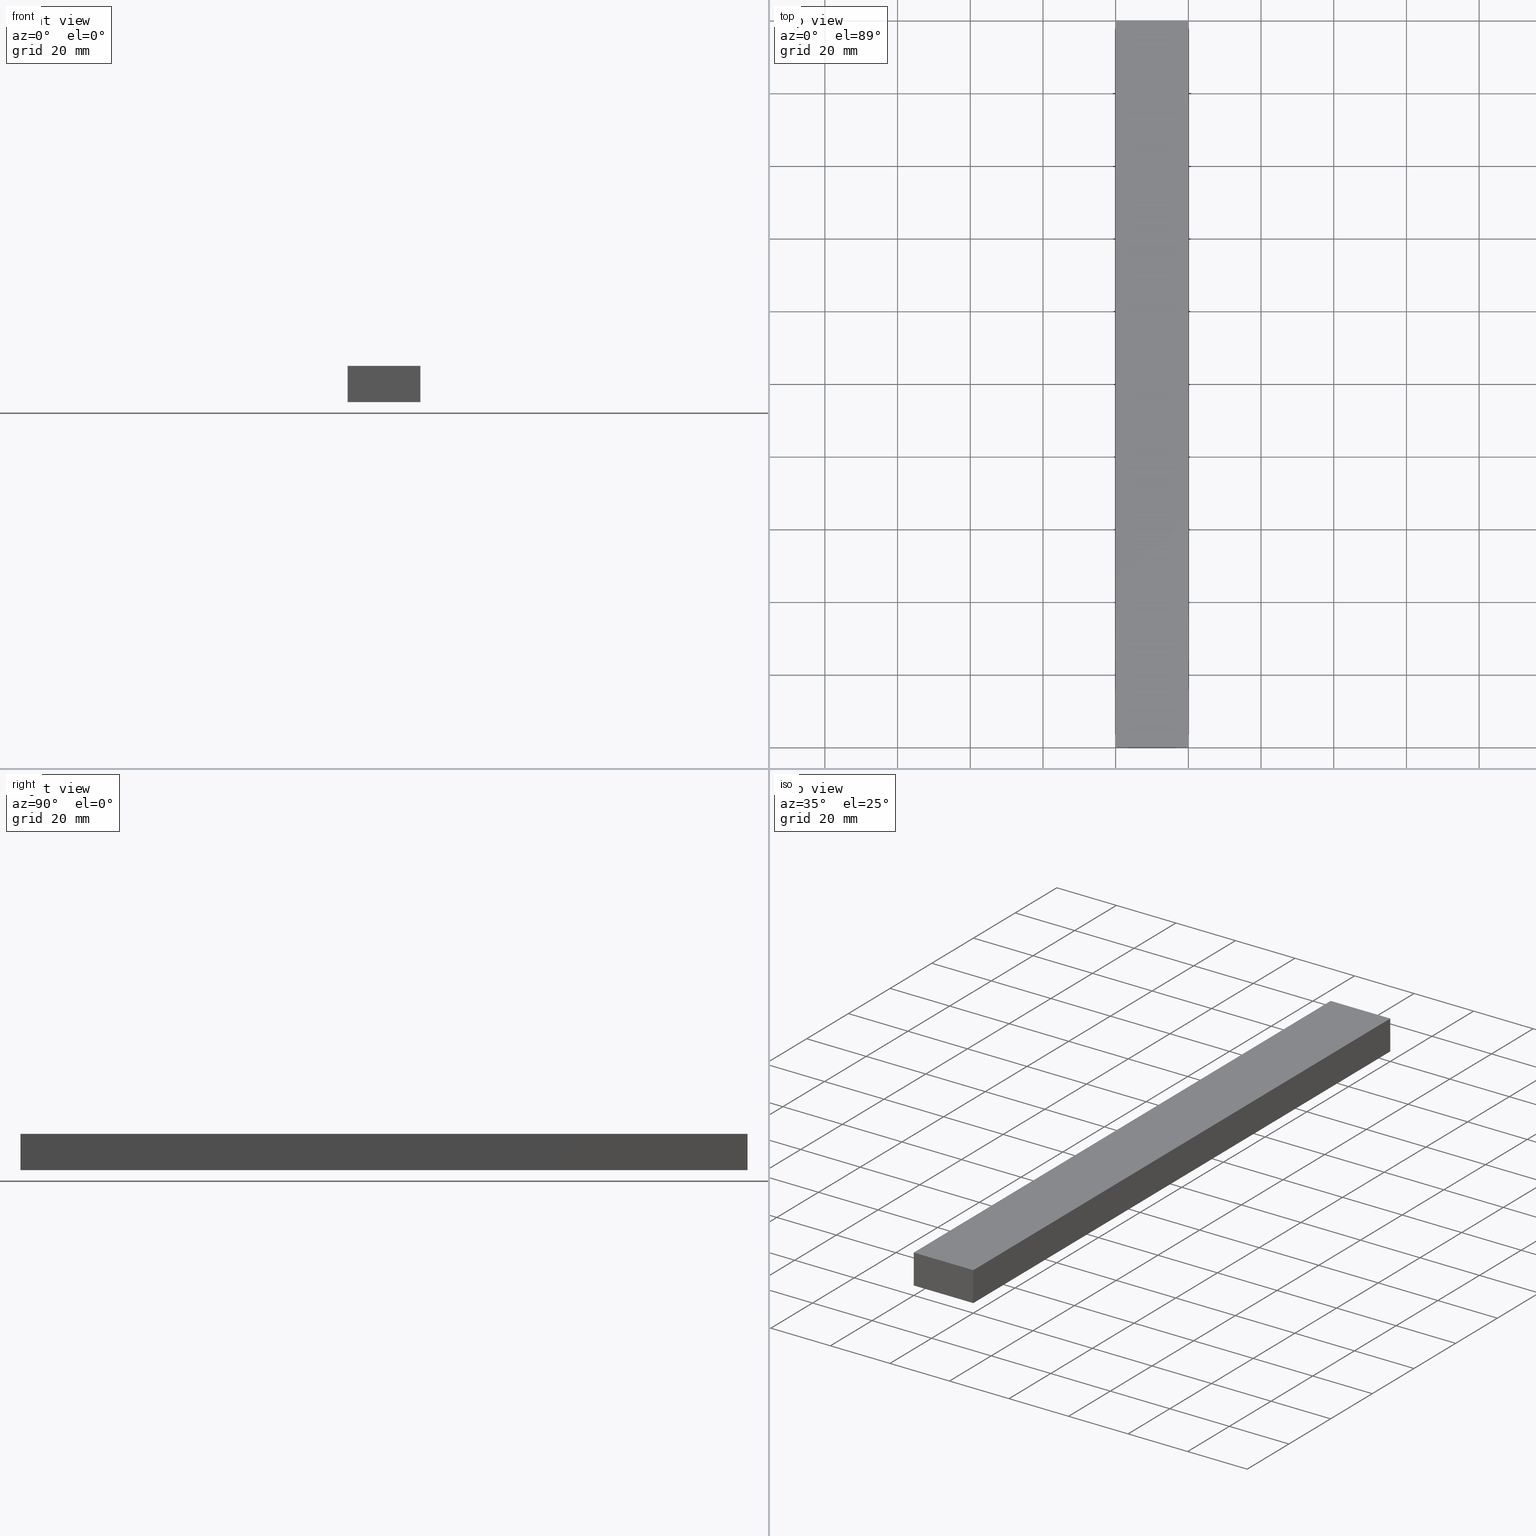
[diagram: canonical four-view strip — front | top / right | iso, engineering-drawing reading convention]
A machine part, canonical four-view strip (front | top / right | iso — engineering-drawing reading convention). The complete STEP part file that produces these views, byte-faithful:
ISO-10303-21;
HEADER;
FILE_DESCRIPTION (( 'STEP AP214' ),
    '1' );
FILE_NAME ('TM_339_10_20.STEP',
    '2016-05-09T04:37:05',
    ( '' ),
    ( '' ),
    'SwSTEP 2.0',
    'SolidWorks 2015',
    '' );
FILE_SCHEMA (( 'AUTOMOTIVE_DESIGN' ));
ENDSEC;

DATA;
#1 = DIRECTION ( 'NONE',  ( 0.0000000000000000000, 0.0000000000000000000, -1.000000000000000000 ) ) ;
#2 = AXIS2_PLACEMENT_3D ( 'NONE', #114, #1, #67 ) ;
#3 = PRODUCT_DEFINITION_CONTEXT ( 'detailed design', #54, 'design' ) ;
#4 = ORIENTED_EDGE ( 'NONE', *, *, #113, .F. ) ;
#5 =( NAMED_UNIT ( * ) PLANE_ANGLE_UNIT ( ) SI_UNIT ( $, .RADIAN. ) );
#6 = LINE ( 'NONE', #89, #43 ) ;
#7 = APPLICATION_PROTOCOL_DEFINITION ( 'draft international standard', 'automotive_design', 1998, #231 ) ;
#8 = AXIS2_PLACEMENT_3D ( 'NONE', #100, #198, #225 ) ;
#9 = SURFACE_SIDE_STYLE ('',( #228 ) ) ;
#10 = CLOSED_SHELL ( 'NONE', ( #172, #135, #128, #190, #151, #28 ) ) ;
#11 = VECTOR ( 'NONE', #39, 1000.000000000000000 ) ;
#12 = ORIENTED_EDGE ( 'NONE', *, *, #171, .T. ) ;
#13 = CARTESIAN_POINT ( 'NONE',  ( 0.0000000000000000000, 0.0000000000000000000, 10.00000000000000000 ) ) ;
#14 = APPLICATION_PROTOCOL_DEFINITION ( 'draft international standard', 'automotive_design', 1998, #110 ) ;
#15 = SHAPE_DEFINITION_REPRESENTATION ( #139, #130 ) ;
#16 = VECTOR ( 'NONE', #234, 1000.000000000000000 ) ;
#17 = FILL_AREA_STYLE_COLOUR ( '', #82 ) ;
#18 =( GEOMETRIC_REPRESENTATION_CONTEXT ( 3 ) GLOBAL_UNCERTAINTY_ASSIGNED_CONTEXT ( ( #84 ) ) GLOBAL_UNIT_ASSIGNED_CONTEXT ( ( #102, #205, #210 ) ) REPRESENTATION_CONTEXT ( 'NONE', 'WORKASPACE' ) );
#19 = ORIENTED_EDGE ( 'NONE', *, *, #87, .F. ) ;
#20 = PLANE ( 'NONE',  #191 ) ;
#21 = PLANE ( 'NONE',  #57 ) ;
#22 = PRODUCT_CONTEXT ( 'NONE', #229, 'mechanical' ) ;
#23 = FILL_AREA_STYLE_COLOUR ( '', #235 ) ;
#24 = CARTESIAN_POINT ( 'NONE',  ( 0.0000000000000000000, 1000.000000000000000, 10.00000000000000000 ) ) ;
#25 = CARTESIAN_POINT ( 'NONE',  ( 20.00000000000000000, 0.0000000000000000000, 0.0000000000000000000 ) ) ;
#26 = PLANE ( 'NONE',  #83 ) ;
#27 = ORIENTED_EDGE ( 'NONE', *, *, #78, .T. ) ;
#28 = ADVANCED_FACE ( 'NONE', ( #116 ), #26, .F. ) ;
#29 = AXIS2_PLACEMENT_3D ( 'NONE', #150, #109, #74 ) ;
#30 =( LENGTH_UNIT ( ) NAMED_UNIT ( * ) SI_UNIT ( .MILLI., .METRE. ) );
#31 = VECTOR ( 'NONE', #131, 1000.000000000000000 ) ;
#32 = CARTESIAN_POINT ( 'NONE',  ( 0.0000000000000000000, 200.0000000000000000, 0.0000000000000000000 ) ) ;
#33 = VECTOR ( 'NONE', #41, 1000.000000000000000 ) ;
#34 = DIRECTION ( 'NONE',  ( -0.0000000000000000000, -0.0000000000000000000, -1.000000000000000000 ) ) ;
#35 = EDGE_LOOP ( 'NONE', ( #86, #206, #221, #53 ) ) ;
#36 = PLANE ( 'NONE',  #60 ) ;
#37 = ORIENTED_EDGE ( 'NONE', *, *, #184, .T. ) ;
#38 = SURFACE_STYLE_FILL_AREA ( #152 ) ;
#39 = DIRECTION ( 'NONE',  ( 1.000000000000000000, -0.0000000000000000000, -0.0000000000000000000 ) ) ;
#40 = CARTESIAN_POINT ( 'NONE',  ( 0.0000000000000000000, 0.0000000000000000000, 0.0000000000000000000 ) ) ;
#41 = DIRECTION ( 'NONE',  ( 0.0000000000000000000, -1.000000000000000000, 0.0000000000000000000 ) ) ;
#42 = FACE_OUTER_BOUND ( 'NONE', #160, .T. ) ;
#43 = VECTOR ( 'NONE', #212, 1000.000000000000000 ) ;
#44 = PRODUCT_DEFINITION ( 'UNKNOWN', '', #106, #69 ) ;
#45 = DIRECTION ( 'NONE',  ( 0.0000000000000000000, 0.0000000000000000000, -1.000000000000000000 ) ) ;
#46 = VERTEX_POINT ( 'NONE', #141 ) ;
#47 = ORIENTED_EDGE ( 'NONE', *, *, #163, .T. ) ;
#48 = DIRECTION ( 'NONE',  ( -0.0000000000000000000, -0.0000000000000000000, 1.000000000000000000 ) ) ;
#49 = VECTOR ( 'NONE', #92, 1000.000000000000000 ) ;
#50 = DIRECTION ( 'NONE',  ( 0.0000000000000000000, 0.0000000000000000000, 1.000000000000000000 ) ) ;
#51 = FILL_AREA_STYLE ('',( #23 ) ) ;
#52 = ORIENTED_EDGE ( 'NONE', *, *, #121, .F. ) ;
#53 = ORIENTED_EDGE ( 'NONE', *, *, #155, .T. ) ;
#54 = APPLICATION_CONTEXT ( 'automotive_design' ) ;
#55 = CARTESIAN_POINT ( 'NONE',  ( 0.0000000000000000000, 1000.000000000000000, 10.00000000000000000 ) ) ;
#56 = PRODUCT_CONTEXT ( 'NONE', #110, 'mechanical' ) ;
#57 = AXIS2_PLACEMENT_3D ( 'NONE', #55, #134, #181 ) ;
#58 = VECTOR ( 'NONE', #97, 1000.000000000000000 ) ;
#59 = VERTEX_POINT ( 'NONE', #32 ) ;
#60 = AXIS2_PLACEMENT_3D ( 'NONE', #199, #178, #180 ) ;
#61 = ORIENTED_EDGE ( 'NONE', *, *, #113, .T. ) ;
#62 = LINE ( 'NONE', #25, #146 ) ;
#63 = PRODUCT_DEFINITION ( 'UNKNOWN', '', #75, #3 ) ;
#64 = UNCERTAINTY_MEASURE_WITH_UNIT (LENGTH_MEASURE( 1.000000000000000100E-005 ), #30, 'distance_accuracy_value', 'NONE');
#65 = ITEM_DEFINED_TRANSFORMATION ( 'NONE', 'NONE', #8,  #80 ) ;
#66 = PLANE ( 'NONE',  #157 ) ;
#67 = DIRECTION ( 'NONE',  ( -1.000000000000000000, 0.0000000000000000000, 0.0000000000000000000 ) ) ;
#68 = DIRECTION ( 'NONE',  ( 0.0000000000000000000, -1.000000000000000000, 0.0000000000000000000 ) ) ;
#69 = PRODUCT_DEFINITION_CONTEXT ( 'detailed design', #231, 'design' ) ;
#70 = SURFACE_SIDE_STYLE ('',( #38 ) ) ;
#71 = CARTESIAN_POINT ( 'NONE',  ( 0.0000000000000000000, 0.0000000000000000000, 0.0000000000000000000 ) ) ;
#72 = DIRECTION ( 'NONE',  ( -0.0000000000000000000, -0.0000000000000000000, 1.000000000000000000 ) ) ;
#73 =( NAMED_UNIT ( * ) SI_UNIT ( $, .STERADIAN. ) SOLID_ANGLE_UNIT ( ) );
#74 = DIRECTION ( 'NONE',  ( 1.000000000000000000, 0.0000000000000000000, 0.0000000000000000000 ) ) ;
#75 = PRODUCT_DEFINITION_FORMATION_WITH_SPECIFIED_SOURCE ( 'ANY', '', #104, .NOT_KNOWN. ) ;
#76 = CARTESIAN_POINT ( 'NONE',  ( 20.00000000000000000, 1000.000000000000000, 10.00000000000000000 ) ) ;
#77 = ORIENTED_EDGE ( 'NONE', *, *, #95, .T. ) ;
#78 = EDGE_CURVE ( 'NONE', #203, #189, #177, .T. ) ;
#79 = PRODUCT ( 'rubber foam', 'rubber foam', '', ( #22 ) ) ;
#80 = AXIS2_PLACEMENT_3D ( 'NONE', #226, #238, #186 ) ;
#81 = ORIENTED_EDGE ( 'NONE', *, *, #170, .T. ) ;
#82 = COLOUR_RGB ( '',0.7921568627450980000, 0.8196078431372548800, 0.9333333333333333500 ) ;
#83 = AXIS2_PLACEMENT_3D ( 'NONE', #164, #120, #167 ) ;
#84 = UNCERTAINTY_MEASURE_WITH_UNIT (LENGTH_MEASURE( 1.000000000000000100E-005 ), #102, 'distance_accuracy_value', 'NONE');
#85 = VECTOR ( 'NONE', #233, 1000.000000000000000 ) ;
#86 = ORIENTED_EDGE ( 'NONE', *, *, #95, .F. ) ;
#87 = EDGE_CURVE ( 'NONE', #59, #203, #179, .T. ) ;
#88 = LINE ( 'NONE', #143, #58 ) ;
#89 = CARTESIAN_POINT ( 'NONE',  ( 0.0000000000000000000, 200.0000000000000000, 10.00000000000000000 ) ) ;
#90 = CARTESIAN_POINT ( 'NONE',  ( 20.00000000000000000, 0.0000000000000000000, 10.00000000000000000 ) ) ;
#91 = FACE_OUTER_BOUND ( 'NONE', #35, .T. ) ;
#92 = DIRECTION ( 'NONE',  ( -1.000000000000000000, -0.0000000000000000000, -0.0000000000000000000 ) ) ;
#93 = SURFACE_STYLE_USAGE ( .BOTH. , #70 ) ;
#94 = PRODUCT_RELATED_PRODUCT_CATEGORY ( 'part', '', ( #104 ) ) ;
#95 = EDGE_CURVE ( 'NONE', #46, #175, #148, .T. ) ;
#96 = VERTEX_POINT ( 'NONE', #214 ) ;
#97 = DIRECTION ( 'NONE',  ( 0.0000000000000000000, -1.000000000000000000, 0.0000000000000000000 ) ) ;
#98 = CARTESIAN_POINT ( 'NONE',  ( 20.00000000000000000, 200.0000000000000000, 10.00000000000000000 ) ) ;
#99 = SHAPE_REPRESENTATION_RELATIONSHIP ( 'NONE' , 'NONE' ,  #213, #153 ) ;
#100 = CARTESIAN_POINT ( 'NONE',  ( 0.0000000000000000000, 0.0000000000000000000, 0.0000000000000000000 ) ) ;
#101 = PRESENTATION_LAYER_ASSIGNMENT (  '', '', ( #119 ) ) ;
#102 =( LENGTH_UNIT ( ) NAMED_UNIT ( * ) SI_UNIT ( .MILLI., .METRE. ) );
#103 = ORIENTED_EDGE ( 'NONE', *, *, #129, .T. ) ;
#104 = PRODUCT ( 'TM_339_10_20', 'TM_339_10_20', '', ( #56 ) ) ;
#105 = UNCERTAINTY_MEASURE_WITH_UNIT (LENGTH_MEASURE( 1.000000000000000100E-005 ), #165, 'distance_accuracy_value', 'NONE');
#106 = PRODUCT_DEFINITION_FORMATION_WITH_SPECIFIED_SOURCE ( 'ANY', '', #79, .NOT_KNOWN. ) ;
#107 = ORIENTED_EDGE ( 'NONE', *, *, #170, .F. ) ;
#108 = VERTEX_POINT ( 'NONE', #217 ) ;
#109 = DIRECTION ( 'NONE',  ( 0.0000000000000000000, 0.0000000000000000000, 1.000000000000000000 ) ) ;
#110 = APPLICATION_CONTEXT ( 'automotive_design' ) ;
#111 = LINE ( 'NONE', #13, #49 ) ;
#112 = PLANE ( 'NONE',  #2 ) ;
#113 = EDGE_CURVE ( 'NONE', #108, #96, #183, .T. ) ;
#114 = CARTESIAN_POINT ( 'NONE',  ( 0.0000000000000000000, 1000.000000000000000, 0.0000000000000000000 ) ) ;
#115 = DIRECTION ( 'NONE',  ( 1.000000000000000000, 0.0000000000000000000, 0.0000000000000000000 ) ) ;
#116 = FACE_OUTER_BOUND ( 'NONE', #195, .T. ) ;
#117 = CARTESIAN_POINT ( 'NONE',  ( 0.0000000000000000000, 200.0000000000000000, 0.0000000000000000000 ) ) ;
#118 = ORIENTED_EDGE ( 'NONE', *, *, #211, .T. ) ;
#119 = STYLED_ITEM ( 'NONE', ( #142 ), #144 ) ;
#120 = DIRECTION ( 'NONE',  ( -0.0000000000000000000, 1.000000000000000000, 0.0000000000000000000 ) ) ;
#121 = EDGE_CURVE ( 'NONE', #189, #237, #174, .T. ) ;
#122 = FACE_OUTER_BOUND ( 'NONE', #197, .T. ) ;
#123 = APPLICATION_PROTOCOL_DEFINITION ( 'draft international standard', 'automotive_design', 1998, #54 ) ;
#124 = CARTESIAN_POINT ( 'NONE',  ( 20.00000000000000000, 200.0000000000000000, 0.0000000000000000000 ) ) ;
#125 = ORIENTED_EDGE ( 'NONE', *, *, #184, .F. ) ;
#126 = SHAPE_DEFINITION_REPRESENTATION ( #173, #213 ) ;
#127 = PRODUCT_RELATED_PRODUCT_CATEGORY ( 'part', '', ( #79 ) ) ;
#128 = ADVANCED_FACE ( 'NONE', ( #166 ), #66, .T. ) ;
#129 = EDGE_CURVE ( 'NONE', #175, #237, #62, .T. ) ;
#130 = SHAPE_REPRESENTATION ( 'TM_339_10_20', ( #29, #8 ), #18 ) ;
#131 = DIRECTION ( 'NONE',  ( -0.0000000000000000000, -0.0000000000000000000, -1.000000000000000000 ) ) ;
#132 = CARTESIAN_POINT ( 'NONE',  ( 0.0000000000000000000, 0.0000000000000000000, 0.0000000000000000000 ) ) ;
#133 = DIRECTION ( 'NONE',  ( 0.0000000000000000000, 0.0000000000000000000, 1.000000000000000000 ) ) ;
#134 = DIRECTION ( 'NONE',  ( -1.000000000000000000, 0.0000000000000000000, 0.0000000000000000000 ) ) ;
#135 = ADVANCED_FACE ( 'NONE', ( #122 ), #20, .T. ) ;
#136 =( NAMED_UNIT ( * ) PLANE_ANGLE_UNIT ( ) SI_UNIT ( $, .RADIAN. ) );
#137 = DIRECTION ( 'NONE',  ( 1.000000000000000000, 0.0000000000000000000, 0.0000000000000000000 ) ) ;
#138 = VECTOR ( 'NONE', #48, 1000.000000000000000 ) ;
#139 = PRODUCT_DEFINITION_SHAPE ( 'NONE', 'NONE',  #63 ) ;
#140 = PRESENTATION_STYLE_ASSIGNMENT (( #93 ) ) ;
#141 = CARTESIAN_POINT ( 'NONE',  ( 0.0000000000000000000, 0.0000000000000000000, 0.0000000000000000000 ) ) ;
#142 = PRESENTATION_STYLE_ASSIGNMENT (( #196 ) ) ;
#143 = CARTESIAN_POINT ( 'NONE',  ( 0.0000000000000000000, 1000.000000000000000, 0.0000000000000000000 ) ) ;
#144 = MANIFOLD_SOLID_BREP ( '���߰�1', #10 ) ;
#145 = ORIENTED_EDGE ( 'NONE', *, *, #129, .F. ) ;
#146 = VECTOR ( 'NONE', #72, 1000.000000000000000 ) ;
#147 = LINE ( 'NONE', #132, #31 ) ;
#148 = LINE ( 'NONE', #40, #11 ) ;
#149 = EDGE_LOOP ( 'NONE', ( #169, #4, #12, #47 ) ) ;
#150 = CARTESIAN_POINT ( 'NONE',  ( 0.0000000000000000000, 0.0000000000000000000, 0.0000000000000000000 ) ) ;
#151 = ADVANCED_FACE ( 'NONE', ( #42 ), #36, .T. ) ;
#152 = FILL_AREA_STYLE ('',( #17 ) ) ;
#153 = ADVANCED_BREP_SHAPE_REPRESENTATION ( '', ( #144, #80 ), #224 ) ;
#154 = CARTESIAN_POINT ( 'NONE',  ( 20.00000000000000000, 200.0000000000000000, 0.0000000000000000000 ) ) ;
#155 = EDGE_CURVE ( 'NONE', #203, #175, #232, .T. ) ;
#156 = MECHANICAL_DESIGN_GEOMETRIC_PRESENTATION_REPRESENTATION (  '', ( #119 ), #219 ) ;
#157 = AXIS2_PLACEMENT_3D ( 'NONE', #158, #50, #137 ) ;
#158 = CARTESIAN_POINT ( 'NONE',  ( 20.00000000000000000, 1000.000000000000000, 10.00000000000000000 ) ) ;
#159 = VECTOR ( 'NONE', #68, 1000.000000000000000 ) ;
#160 = EDGE_LOOP ( 'NONE', ( #19, #222, #125, #209 ) ) ;
#161 = LINE ( 'NONE', #168, #220 ) ;
#162 =( REPRESENTATION_RELATIONSHIP ('NONE','NONE', #130, #213 ) REPRESENTATION_RELATIONSHIP_WITH_TRANSFORMATION ( #65 )SHAPE_REPRESENTATION_RELATIONSHIP( ) );
#163 = EDGE_CURVE ( 'NONE', #59, #46, #88, .T. ) ;
#164 = CARTESIAN_POINT ( 'NONE',  ( 0.0000000000000000000, 0.0000000000000000000, 0.0000000000000000000 ) ) ;
#165 =( LENGTH_UNIT ( ) NAMED_UNIT ( * ) SI_UNIT ( .MILLI., .METRE. ) );
#166 = FACE_OUTER_BOUND ( 'NONE', #182, .T. ) ;
#167 = DIRECTION ( 'NONE',  ( 1.000000000000000000, 0.0000000000000000000, 0.0000000000000000000 ) ) ;
#168 = CARTESIAN_POINT ( 'NONE',  ( 0.0000000000000000000, 200.0000000000000000, 0.0000000000000000000 ) ) ;
#169 = ORIENTED_EDGE ( 'NONE', *, *, #211, .F. ) ;
#170 = EDGE_CURVE ( 'NONE', #237, #96, #111, .T. ) ;
#171 = EDGE_CURVE ( 'NONE', #108, #59, #161, .T. ) ;
#172 = ADVANCED_FACE ( 'NONE', ( #91 ), #112, .T. ) ;
#173 = PRODUCT_DEFINITION_SHAPE ( 'NONE', 'NONE',  #44 ) ;
#174 = LINE ( 'NONE', #76, #33 ) ;
#175 = VERTEX_POINT ( 'NONE', #215 ) ;
#176 = CONTEXT_DEPENDENT_SHAPE_REPRESENTATION ( #162, #200 ) ;
#177 = LINE ( 'NONE', #124, #138 ) ;
#178 = DIRECTION ( 'NONE',  ( -0.0000000000000000000, 1.000000000000000000, 0.0000000000000000000 ) ) ;
#179 = LINE ( 'NONE', #117, #85 ) ;
#180 = DIRECTION ( 'NONE',  ( 1.000000000000000000, 0.0000000000000000000, 0.0000000000000000000 ) ) ;
#181 = DIRECTION ( 'NONE',  ( 0.0000000000000000000, 0.0000000000000000000, 1.000000000000000000 ) ) ;
#182 = EDGE_LOOP ( 'NONE', ( #107, #52, #37, #61 ) ) ;
#183 = LINE ( 'NONE', #24, #16 ) ;
#184 = EDGE_CURVE ( 'NONE', #189, #108, #6, .T. ) ;
#185 = STYLED_ITEM ( 'NONE', ( #140 ), #153 ) ;
#186 = DIRECTION ( 'NONE',  ( 1.000000000000000000, 0.0000000000000000000, 0.0000000000000000000 ) ) ;
#187 =( NAMED_UNIT ( * ) SI_UNIT ( $, .STERADIAN. ) SOLID_ANGLE_UNIT ( ) );
#188 = PRESENTATION_LAYER_ASSIGNMENT (  '', '', ( #185 ) ) ;
#189 = VERTEX_POINT ( 'NONE', #98 ) ;
#190 = ADVANCED_FACE ( 'NONE', ( #194 ), #21, .T. ) ;
#191 = AXIS2_PLACEMENT_3D ( 'NONE', #208, #115, #45 ) ;
#192 =( NAMED_UNIT ( * ) SI_UNIT ( $, .STERADIAN. ) SOLID_ANGLE_UNIT ( ) );
#193 = MECHANICAL_DESIGN_GEOMETRIC_PRESENTATION_REPRESENTATION (  '', ( #185 ), #202 ) ;
#194 = FACE_OUTER_BOUND ( 'NONE', #149, .T. ) ;
#195 = EDGE_LOOP ( 'NONE', ( #77, #103, #81, #118 ) ) ;
#196 = SURFACE_STYLE_USAGE ( .BOTH. , #9 ) ;
#197 = EDGE_LOOP ( 'NONE', ( #145, #227, #27, #201 ) ) ;
#198 = DIRECTION ( 'NONE',  ( 0.0000000000000000000, 0.0000000000000000000, 1.000000000000000000 ) ) ;
#199 = CARTESIAN_POINT ( 'NONE',  ( 0.0000000000000000000, 200.0000000000000000, 0.0000000000000000000 ) ) ;
#200 = PRODUCT_DEFINITION_SHAPE ( 'NONE', 'NONE',  #239 ) ;
#201 = ORIENTED_EDGE ( 'NONE', *, *, #121, .T. ) ;
#202 =( GEOMETRIC_REPRESENTATION_CONTEXT ( 3 ) GLOBAL_UNCERTAINTY_ASSIGNED_CONTEXT ( ( #230 ) ) GLOBAL_UNIT_ASSIGNED_CONTEXT ( ( #218, #204, #187 ) ) REPRESENTATION_CONTEXT ( 'NONE', 'WORKASPACE' ) );
#203 = VERTEX_POINT ( 'NONE', #154 ) ;
#204 =( NAMED_UNIT ( * ) PLANE_ANGLE_UNIT ( ) SI_UNIT ( $, .RADIAN. ) );
#205 =( NAMED_UNIT ( * ) PLANE_ANGLE_UNIT ( ) SI_UNIT ( $, .RADIAN. ) );
#206 = ORIENTED_EDGE ( 'NONE', *, *, #163, .F. ) ;
#207 = CARTESIAN_POINT ( 'NONE',  ( 20.00000000000000000, 1000.000000000000000, 0.0000000000000000000 ) ) ;
#208 = CARTESIAN_POINT ( 'NONE',  ( 20.00000000000000000, 1000.000000000000000, 0.0000000000000000000 ) ) ;
#209 = ORIENTED_EDGE ( 'NONE', *, *, #78, .F. ) ;
#210 =( NAMED_UNIT ( * ) SI_UNIT ( $, .STERADIAN. ) SOLID_ANGLE_UNIT ( ) );
#211 = EDGE_CURVE ( 'NONE', #96, #46, #147, .T. ) ;
#212 = DIRECTION ( 'NONE',  ( -1.000000000000000000, -0.0000000000000000000, -0.0000000000000000000 ) ) ;
#213 = SHAPE_REPRESENTATION ( 'rubber foam', ( #80 ), #224 ) ;
#214 = CARTESIAN_POINT ( 'NONE',  ( 0.0000000000000000000, 0.0000000000000000000, 10.00000000000000000 ) ) ;
#215 = CARTESIAN_POINT ( 'NONE',  ( 20.00000000000000000, 0.0000000000000000000, 0.0000000000000000000 ) ) ;
#216 = DIRECTION ( 'NONE',  ( 1.000000000000000000, 0.0000000000000000000, 0.0000000000000000000 ) ) ;
#217 = CARTESIAN_POINT ( 'NONE',  ( 0.0000000000000000000, 200.0000000000000000, 10.00000000000000000 ) ) ;
#218 =( LENGTH_UNIT ( ) NAMED_UNIT ( * ) SI_UNIT ( .MILLI., .METRE. ) );
#219 =( GEOMETRIC_REPRESENTATION_CONTEXT ( 3 ) GLOBAL_UNCERTAINTY_ASSIGNED_CONTEXT ( ( #105 ) ) GLOBAL_UNIT_ASSIGNED_CONTEXT ( ( #165, #5, #73 ) ) REPRESENTATION_CONTEXT ( 'NONE', 'WORKASPACE' ) );
#220 = VECTOR ( 'NONE', #34, 1000.000000000000000 ) ;
#221 = ORIENTED_EDGE ( 'NONE', *, *, #87, .T. ) ;
#222 = ORIENTED_EDGE ( 'NONE', *, *, #171, .F. ) ;
#223 = APPLICATION_PROTOCOL_DEFINITION ( 'draft international standard', 'automotive_design', 1998, #229 ) ;
#224 =( GEOMETRIC_REPRESENTATION_CONTEXT ( 3 ) GLOBAL_UNCERTAINTY_ASSIGNED_CONTEXT ( ( #64 ) ) GLOBAL_UNIT_ASSIGNED_CONTEXT ( ( #30, #136, #192 ) ) REPRESENTATION_CONTEXT ( 'NONE', 'WORKASPACE' ) );
#225 = DIRECTION ( 'NONE',  ( 1.000000000000000000, 0.0000000000000000000, 0.0000000000000000000 ) ) ;
#226 = CARTESIAN_POINT ( 'NONE',  ( 0.0000000000000000000, 0.0000000000000000000, 0.0000000000000000000 ) ) ;
#227 = ORIENTED_EDGE ( 'NONE', *, *, #155, .F. ) ;
#228 = SURFACE_STYLE_FILL_AREA ( #51 ) ;
#229 = APPLICATION_CONTEXT ( 'automotive_design' ) ;
#230 = UNCERTAINTY_MEASURE_WITH_UNIT (LENGTH_MEASURE( 1.000000000000000100E-005 ), #218, 'distance_accuracy_value', 'NONE');
#231 = APPLICATION_CONTEXT ( 'automotive_design' ) ;
#232 = LINE ( 'NONE', #207, #159 ) ;
#233 = DIRECTION ( 'NONE',  ( 1.000000000000000000, -0.0000000000000000000, -0.0000000000000000000 ) ) ;
#234 = DIRECTION ( 'NONE',  ( 0.0000000000000000000, -1.000000000000000000, 0.0000000000000000000 ) ) ;
#235 = COLOUR_RGB ( '',0.7921568627450980000, 0.8196078431372548800, 0.9333333333333333500 ) ;
#236 = AXIS2_PLACEMENT_3D ( 'NONE', #71, #133, #216 ) ;
#237 = VERTEX_POINT ( 'NONE', #90 ) ;
#238 = DIRECTION ( 'NONE',  ( 0.0000000000000000000, 0.0000000000000000000, 1.000000000000000000 ) ) ;
#239 = NEXT_ASSEMBLY_USAGE_OCCURRENCE ( 'NAUO1', ' ', ' ', #63, #44, $ ) ;
ENDSEC;
END-ISO-10303-21;
